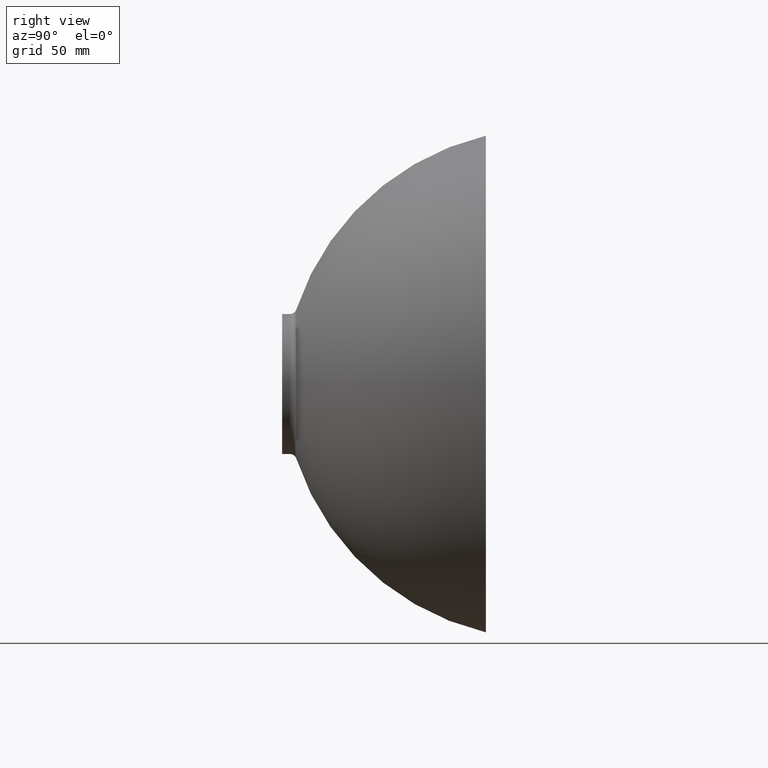
[diagram: clean part render]
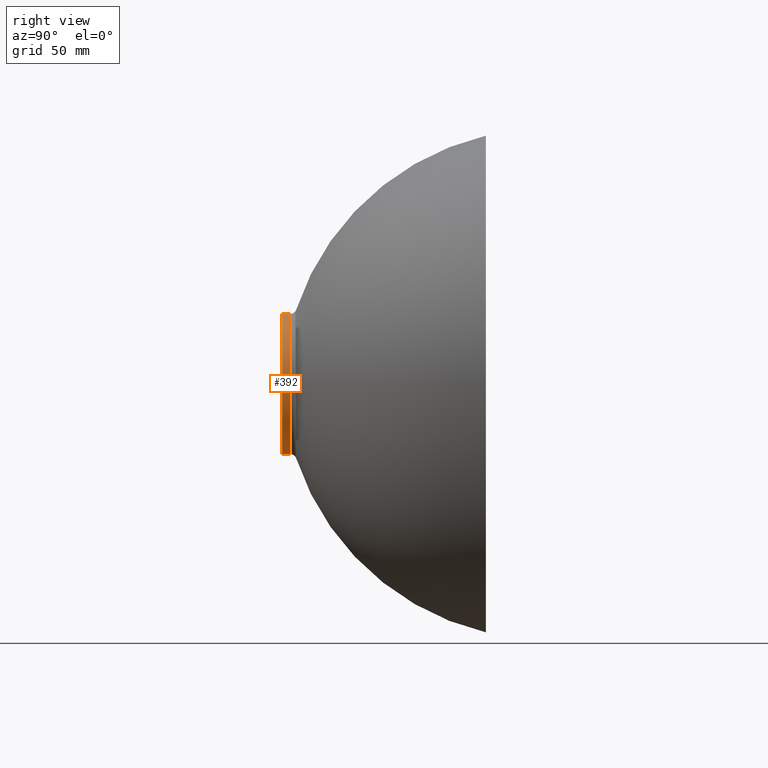
[diagram: same view with one face highlighted and labeled with its STEP entity id]
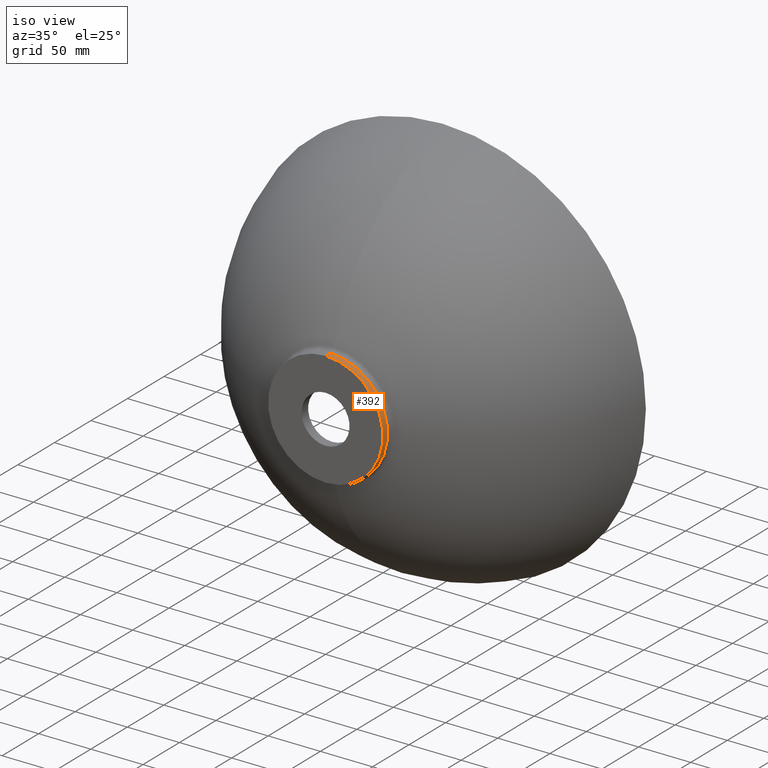
[diagram: same view with one face highlighted and labeled with its STEP entity id]
A machine part, right view. The second image highlights one B-rep face of the part: STEP entity #392.
A second angle (iso view) of the same face is appended — the face is thin or edge-on in the first view.
In plain terms, the highlighted cylindrical surface (partial cylindrical patch) has radius 55 mm, axis along (-0, -1, -0).
Its self-contained STEP definition (entity closure, byte-faithful):
#17 = EDGE_CURVE ( 'NONE', #246, #86, #368, .T. ) ;
#20 = LINE ( 'NONE', #151, #418 ) ;
#33 = DIRECTION ( 'NONE',  ( -0.0000000000000000000, -1.000000000000000000, -0.0000000000000000000 ) ) ;
#44 = ORIENTED_EDGE ( 'NONE', *, *, #17, .T. ) ;
#50 = ORIENTED_EDGE ( 'NONE', *, *, #381, .T. ) ;
#52 = CARTESIAN_POINT ( 'NONE',  ( 0.0000000000000000000, 6.351875518007669400, 0.0000000000000000000 ) ) ;
#53 = CARTESIAN_POINT ( 'NONE',  ( 0.0000000000000000000, 0.0000000000000000000, -55.00000000000001400 ) ) ;
#58 = DIRECTION ( 'NONE',  ( 0.0000000000000000000, 0.0000000000000000000, -1.000000000000000000 ) ) ;
#74 = EDGE_CURVE ( 'NONE', #178, #86, #294, .T. ) ;
#86 = VERTEX_POINT ( 'NONE', #205 ) ;
#102 = CARTESIAN_POINT ( 'NONE',  ( 6.735557395310444200E-015, 0.0000000000000000000, 55.00000000000000700 ) ) ;
#144 = AXIS2_PLACEMENT_3D ( 'NONE', #379, #380, #58 ) ;
#151 = CARTESIAN_POINT ( 'NONE',  ( 0.0000000000000000000, 0.0000000000000000000, -55.00000000000000700 ) ) ;
#178 = VERTEX_POINT ( 'NONE', #53 ) ;
#191 = ORIENTED_EDGE ( 'NONE', *, *, #198, .F. ) ;
#198 = EDGE_CURVE ( 'NONE', #422, #178, #20, .T. ) ;
#205 = CARTESIAN_POINT ( 'NONE',  ( 6.735557395310445800E-015, 0.0000000000000000000, 55.00000000000002100 ) ) ;
#246 = VERTEX_POINT ( 'NONE', #341 ) ;
#256 = DIRECTION ( 'NONE',  ( -0.0000000000000000000, -1.000000000000000000, -0.0000000000000000000 ) ) ;
#262 = ORIENTED_EDGE ( 'NONE', *, *, #74, .F. ) ;
#273 = DIRECTION ( 'NONE',  ( -0.0000000000000000000, -1.000000000000000000, -0.0000000000000000000 ) ) ;
#278 = VECTOR ( 'NONE', #273, 1000.000000000000000 ) ;
#279 = FACE_OUTER_BOUND ( 'NONE', #440, .T. ) ;
#294 = CIRCLE ( 'NONE', #144, 55.00000000000001400 ) ;
#305 = CIRCLE ( 'NONE', #355, 54.99999999999999300 ) ;
#326 = DIRECTION ( 'NONE',  ( -0.0000000000000000000, -1.000000000000000000, -0.0000000000000000000 ) ) ;
#341 = CARTESIAN_POINT ( 'NONE',  ( 6.735557395310443400E-015, 6.351875518007669400, 54.99999999999999300 ) ) ;
#346 = DIRECTION ( 'NONE',  ( 0.0000000000000000000, 0.0000000000000000000, -1.000000000000000000 ) ) ;
#348 = CARTESIAN_POINT ( 'NONE',  ( 0.0000000000000000000, 6.351875518007669400, -54.99999999999999300 ) ) ;
#355 = AXIS2_PLACEMENT_3D ( 'NONE', #52, #326, #346 ) ;
#368 = LINE ( 'NONE', #102, #278 ) ;
#379 = CARTESIAN_POINT ( 'NONE',  ( 0.0000000000000000000, 0.0000000000000000000, 0.0000000000000000000 ) ) ;
#380 = DIRECTION ( 'NONE',  ( -0.0000000000000000000, -1.000000000000000000, -0.0000000000000000000 ) ) ;
#381 = EDGE_CURVE ( 'NONE', #422, #246, #305, .T. ) ;
#387 = AXIS2_PLACEMENT_3D ( 'NONE', #431, #33, #423 ) ;
#392 = ADVANCED_FACE ( 'NONE', ( #279 ), #442, .T. ) ;
#418 = VECTOR ( 'NONE', #256, 1000.000000000000000 ) ;
#422 = VERTEX_POINT ( 'NONE', #348 ) ;
#423 = DIRECTION ( 'NONE',  ( 0.0000000000000000000, 0.0000000000000000000, -1.000000000000000000 ) ) ;
#431 = CARTESIAN_POINT ( 'NONE',  ( 0.0000000000000000000, 0.0000000000000000000, 0.0000000000000000000 ) ) ;
#440 = EDGE_LOOP ( 'NONE', ( #50, #44, #262, #191 ) ) ;
#442 = CYLINDRICAL_SURFACE ( 'NONE', #387, 55.00000000000000700 ) ;